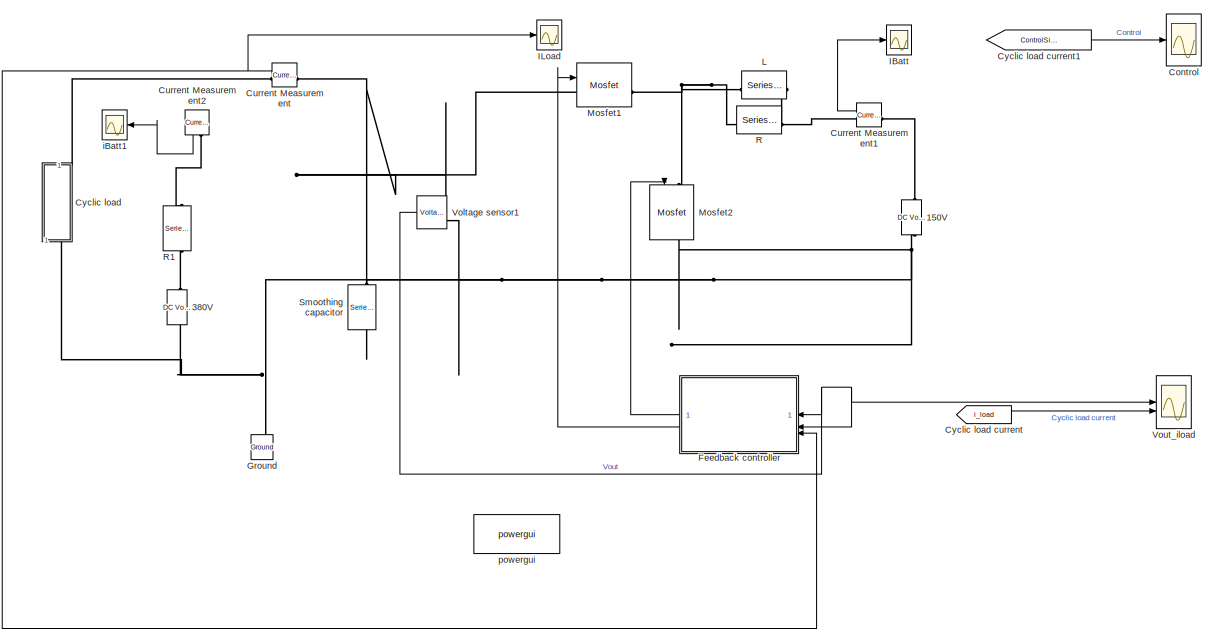
[diagram: root canvas - part 1/2, left side, full height]
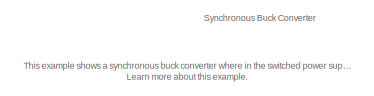
[diagram: root canvas - part 2/2, top right region]
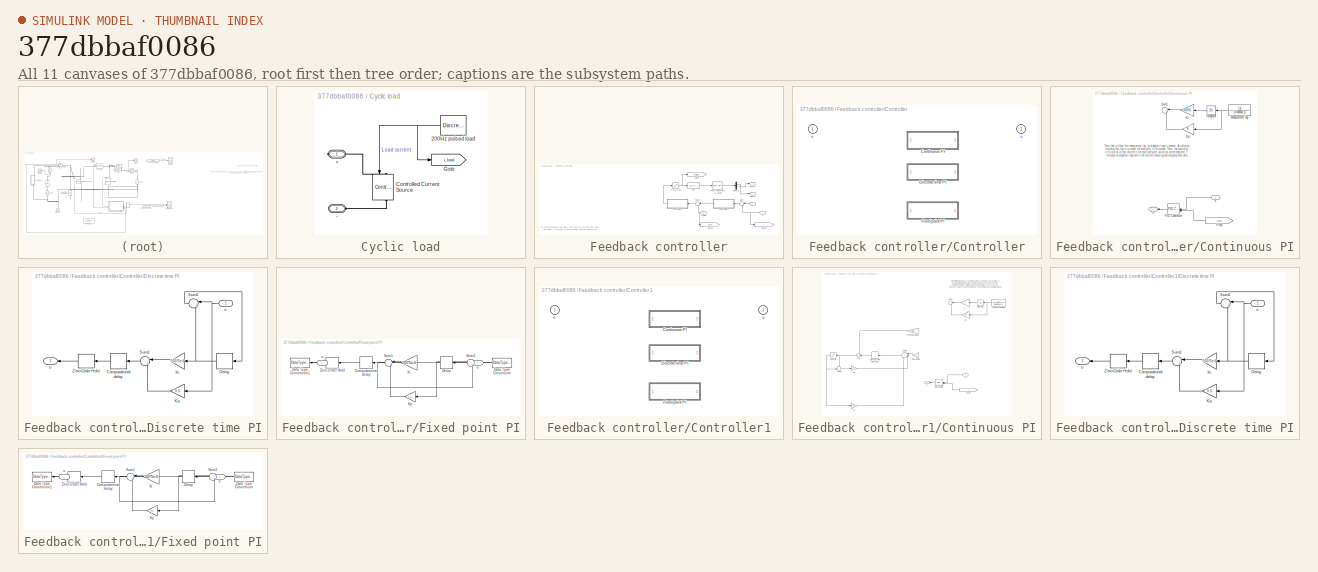
[diagram: thumbnail index - all 11 canvases of the model, root first then tree order]
MODEL slx_377dbbaf0086
KIND model
CONFIG AbsTol = auto
CONFIG EnableMultiTasking = on
CONFIG FixedStep = auto
CONFIG MaxStep = 1e-4
CONFIG MinStep = auto
CONFIG RelTol = 1e-4
CONFIG SampleTimeConstraint = Unconstrained
CONFIG SolverName = VariableStepAuto
CONFIG StartTime = 0.0
CONFIG StopTime = 10
BLOCK [Reference] 150V  REF=spsDCVoltageSourceLib/DC Voltage Source
  NameLocation = right
  SourceBlock = spsDCVoltageSourceLib/DC Voltage Source
  SourceType = DC Voltage Source
BLOCK [Reference] 380V  REF=spsDCVoltageSourceLib/DC Voltage Source
  NameLocation = right
  SourceBlock = spsDCVoltageSourceLib/DC Voltage Source
  SourceType = DC Voltage Source
BLOCK [Scope] Control
  ActiveDisplayYMaximum = 0.023182348178801094
  ActiveDisplayYMinimum = -0.0024647053532001208
  DataLoggingDecimateData = on
  DataLoggingDecimation = 1
  DataLoggingSaveFormat = Array
  DataLoggingVariableName = Control
  Floating = off
  GraphicalSettings = {"Style":{"BackgroundColor":[0.12941176470588237,0.12941176470588237,0.12941176470588237],"AxesColor":[0.07058823529411765,0.07058823529411765,0.07058823529411765],"LabelsColor":[0.8509803921568627,0.8509803921568627,0.8509803921568627],"PreserveColors":false,"Visible":[true],"LineStyle":["-"],"LineWidth":[1.5],"BarWidth":[0.9],"LineColor":["auto"],"LineFaceAlpha":[1],"LineEdgeAlpha":[1],"Marker":...<+2013ch>
  MultipleDisplayCache = [{"MaxYLimMag":0.023182348178801094,"MaxYLimReal":0.023182348178801094,"MinYLimMag":0,"MinYLimReal":-0.0024647053532001208,"PlotAsMagnitudePhase":false,"ShowGrid":true,"ShowLegend":false,"Title":"%<SignalLabel>","YLabel":""}]
  NumInputPorts = 1
  ScopeFrameLocation = window
  TimeSpan = 0.01
  Visible = on
  WasSavedAsWebScope = on
  WindowPosition = [690.000000,269.000000,489.000000,261.000000,]
BLOCK [Reference] Current Measurement  REF=spsCurrentMeasurementLib/Current Measurement
  SourceBlock = spsCurrentMeasurementLib/Current Measurement
  SourceType = Current Measurement
BLOCK [Reference] Current Measurement1  REF=spsCurrentMeasurementLib/Current Measurement
  SourceBlock = spsCurrentMeasurementLib/Current Measurement
  SourceType = Current Measurement
BLOCK [Reference] Current Measurement2  REF=spsCurrentMeasurementLib/Current Measurement
  NameLocation = right
  SourceBlock = spsCurrentMeasurementLib/Current Measurement
  SourceType = Current Measurement
BLOCK [SubSystem] Cyclic load
  NameLocation = right
BLOCK [From] Cyclic load current
  GotoTag = i_load
  TagVisibility = global
BLOCK [From] Cyclic load current1
  GotoTag = ControlSignal
  TagVisibility = global
BLOCK [PMIOPort] Cyclic load/+
  Side = Right
BLOCK [PMIOPort] Cyclic load/-
  Port = 2
  Side = Left
BLOCK [DiscretePulseGenerator] Cyclic load/200Hz pulsed load
  Amplitude = 100
  Period = 4
  PhaseDelay = 1/400
  PulseType = Time based
  PulseWidth = 50
BLOCK [Reference] Cyclic load/Controlled Current Source  REF=spsControlledCurrentSourceLib/Controlled Current Source
  NameLocation = right
  SourceBlock = spsControlledCurrentSourceLib/Controlled Current Source
  SourceType = Controlled Current Source
BLOCK [Goto] Cyclic load/Goto
  GotoTag = i_load
  TagVisibility = global
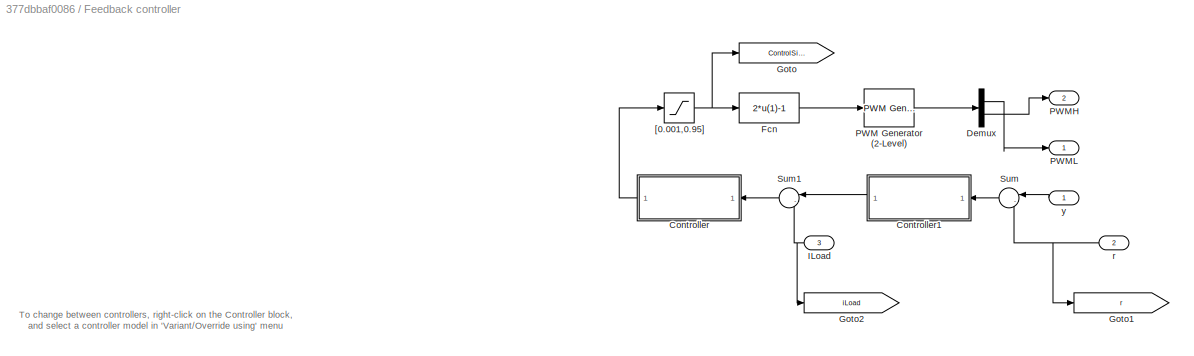
BLOCK [SubSystem] Feedback controller
BLOCK [SubSystem] Feedback controller/Controller
  AttributesFormatString = %<BlockChoice>
  LabelModeActiveChoice = Variant1
  Variant = on
  VariantControlMode = label
BLOCK [SubSystem] Feedback controller/Controller/Continuous PI
  VariantControl = Variant1
BLOCK [From] Feedback controller/Controller/Continuous PI/From
  GotoTag = iLoad
  TagVisibility = global
BLOCK [Integrator] Feedback controller/Controller/Continuous PI/Integrator
BLOCK [Gain] Feedback controller/Controller/Continuous PI/Ki
  Gain = 3000
BLOCK [Gain] Feedback controller/Controller/Continuous PI/Kp
BLOCK [TransferFcn] Feedback controller/Controller/Continuous PI/Measurement lag
  Denominator = [0.000001 1]
BLOCK [Reference] Feedback controller/Controller/Continuous PI/PID Controller  REF=slpidlib/PID Controller
  LibrarySourceBlock = simulink/Continuous/PID Controller
  SourceBlock = slpidlib/PID Controller
  SourceType = PID 1dof
BLOCK [Sum] Feedback controller/Controller/Continuous PI/Sum1
  InputSameDT = on
  Inputs = |++
  OutDataTypeStr = Inherit: Same as first input
  SaturateOnIntegerOverflow = on
BLOCK [Inport] Feedback controller/Controller/Continuous PI/e
BLOCK [Outport] Feedback controller/Controller/Continuous PI/u
  VectorParamsAs1DForOutWhenUnconnected = off
BLOCK [SubSystem] Feedback controller/Controller/Discrete time PI
  VariantControl = Variant2
BLOCK [Delay] Feedback controller/Controller/Discrete time PI/Computational delay
  DelayLength = 1
  InputPortMap = u0
  SampleTime = 5e-6
BLOCK [Delay] Feedback controller/Controller/Discrete time PI/Delay
  DelayLength = 1
  InputPortMap = u0
  SampleTime = 5e-6
BLOCK [Gain] Feedback controller/Controller/Discrete time PI/Ki
  Gain = 200*5e-6
BLOCK [Gain] Feedback controller/Controller/Discrete time PI/Kp
  Gain = 0.5
BLOCK [Sum] Feedback controller/Controller/Discrete time PI/Sum1
  InputSameDT = on
  Inputs = |++
  OutDataTypeStr = Inherit: Same as first input
  SaturateOnIntegerOverflow = on
BLOCK [Sum] Feedback controller/Controller/Discrete time PI/Sum2
  InputSameDT = on
  Inputs = |++
  OutDataTypeStr = Inherit: Same as first input
  SaturateOnIntegerOverflow = on
BLOCK [ZeroOrderHold] Feedback controller/Controller/Discrete time PI/Zero-Order Hold
  SampleTime = 5e-6
BLOCK [Inport] Feedback controller/Controller/Discrete time PI/e
BLOCK [Outport] Feedback controller/Controller/Discrete time PI/u
  VectorParamsAs1DForOutWhenUnconnected = off
BLOCK [SubSystem] Feedback controller/Controller/Fixed point PI
  MinMaxOverflowLogging = MinMaxAndOverflow
  VariantControl = Variant3
BLOCK [Delay] Feedback controller/Controller/Fixed point PI/Computational delay
  DelayLength = 1
  InputPortMap = u0
  SampleTime = 5e-6
BLOCK [DataTypeConversion] Feedback controller/Controller/Fixed point PI/Data Type Conversion
  OutDataTypeStr = fixdt(1,16,11)
  RndMeth = Nearest
  SaturateOnIntegerOverflow = off
BLOCK [DataTypeConversion] Feedback controller/Controller/Fixed point PI/Data Type Conversion1
  OutDataTypeStr = double
  RndMeth = Nearest
  SaturateOnIntegerOverflow = off
BLOCK [Delay] Feedback controller/Controller/Fixed point PI/Delay
  DelayLength = 1
  InputPortMap = u0
  SampleTime = 5e-6
BLOCK [Gain] Feedback controller/Controller/Fixed point PI/Ki
  Gain = 200*5e-6
  OutDataTypeStr = fixdt(1,16,13)
  RndMeth = Nearest
BLOCK [Gain] Feedback controller/Controller/Fixed point PI/Kp
  Gain = 0.5
  OutDataTypeStr = fixdt(1,16,9)
  RndMeth = Nearest
BLOCK [Sum] Feedback controller/Controller/Fixed point PI/Sum1
  Inputs = |++
  SaturateOnIntegerOverflow = on
BLOCK [Sum] Feedback controller/Controller/Fixed point PI/Sum2
  InputSameDT = on
  Inputs = |++
  OutDataTypeStr = Inherit: Same as first input
  SaturateOnIntegerOverflow = on
BLOCK [ZeroOrderHold] Feedback controller/Controller/Fixed point PI/Zero-Order Hold
  SampleTime = 5e-6
BLOCK [Inport] Feedback controller/Controller/Fixed point PI/e
BLOCK [Outport] Feedback controller/Controller/Fixed point PI/u
  VectorParamsAs1DForOutWhenUnconnected = off
BLOCK [Inport] Feedback controller/Controller/e
BLOCK [Outport] Feedback controller/Controller/u
  VectorParamsAs1DForOutWhenUnconnected = off
BLOCK [SubSystem] Feedback controller/Controller1
  AttributesFormatString = %<BlockChoice>
  LabelModeActiveChoice = Variant1
  Variant = on
  VariantControlMode = label
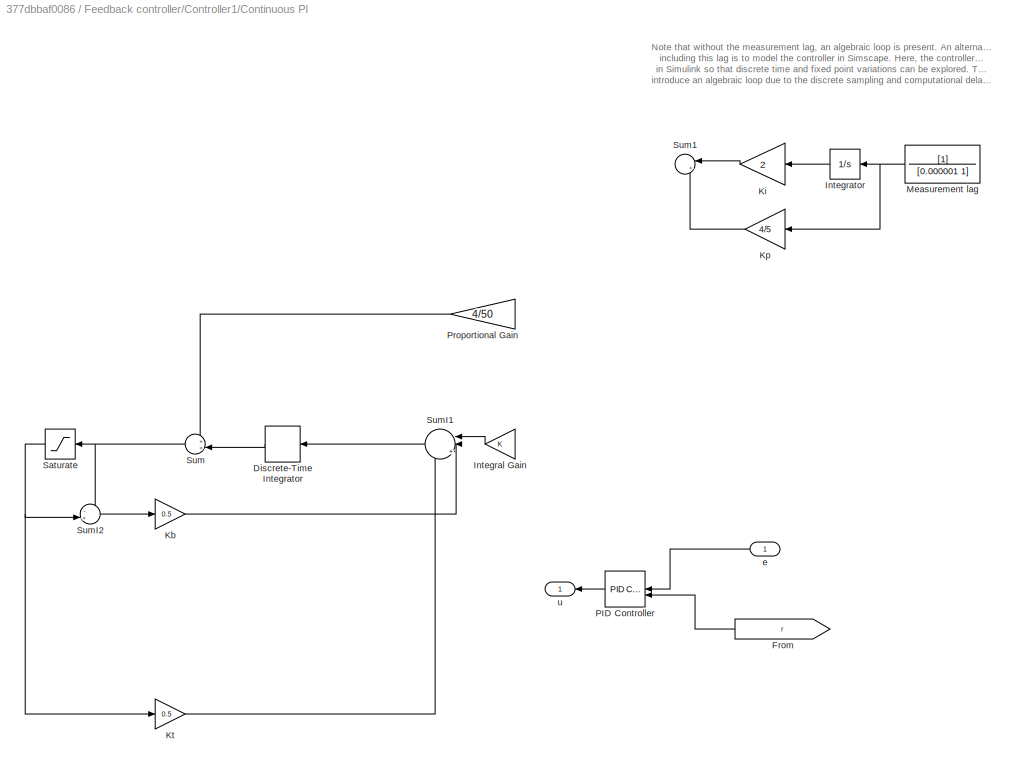
BLOCK [SubSystem] Feedback controller/Controller1/Continuous PI
  VariantControl = Variant1
BLOCK [DiscreteIntegrator] Feedback controller/Controller1/Continuous PI/Discrete-Time Integrator
  ICPrevOutput = DiscIntNeverNeededParam
  ICPrevScaledInput = DiscIntNeverNeededParam
  InitialConditionSetting = Auto
  SampleTime = 0.01
BLOCK [From] Feedback controller/Controller1/Continuous PI/From
  GotoTag = r
  TagVisibility = global
BLOCK [Gain] Feedback controller/Controller1/Continuous PI/Integral Gain
  DisableCoverage = on
  ParamMax = 10000
  ParamMin = 0
BLOCK [Integrator] Feedback controller/Controller1/Continuous PI/Integrator
BLOCK [Gain] Feedback controller/Controller1/Continuous PI/Kb
  Gain = 0.5
  OutMax = 1
  OutMin = 0
BLOCK [Gain] Feedback controller/Controller1/Continuous PI/Ki
  Gain = 2
BLOCK [Gain] Feedback controller/Controller1/Continuous PI/Kp
  Gain = 4/5
BLOCK [Gain] Feedback controller/Controller1/Continuous PI/Kt
  DisableCoverage = on
  Gain = 0.5
BLOCK [TransferFcn] Feedback controller/Controller1/Continuous PI/Measurement lag
  Denominator = [0.000001 1]
BLOCK [Reference] Feedback controller/Controller1/Continuous PI/PID Controller  REF=slpidlib/PID Controller
  LibrarySourceBlock = simulink/Continuous/PID Controller
  SourceBlock = slpidlib/PID Controller
  SourceType = PID 1dof
BLOCK [Gain] Feedback controller/Controller1/Continuous PI/Proportional Gain
  Gain = 4/50
BLOCK [Saturate] Feedback controller/Controller1/Continuous PI/Saturate
  LowerLimit = -400
  OutMax = 400
  OutMin = -400
  UpperLimit = 400
BLOCK [Sum] Feedback controller/Controller1/Continuous PI/Sum
  Inputs = ++|
BLOCK [Sum] Feedback controller/Controller1/Continuous PI/Sum1
  InputSameDT = on
  Inputs = |++
  OutDataTypeStr = Inherit: Same as first input
  SaturateOnIntegerOverflow = on
BLOCK [Sum] Feedback controller/Controller1/Continuous PI/SumI1
  Inputs = ||+++
BLOCK [Sum] Feedback controller/Controller1/Continuous PI/SumI2
  DisableCoverage = on
  Inputs = -+|
BLOCK [Inport] Feedback controller/Controller1/Continuous PI/e
BLOCK [Outport] Feedback controller/Controller1/Continuous PI/u
  VectorParamsAs1DForOutWhenUnconnected = off
BLOCK [SubSystem] Feedback controller/Controller1/Discrete time PI
  VariantControl = Variant2
BLOCK [Delay] Feedback controller/Controller1/Discrete time PI/Computational delay
  DelayLength = 1
  InputPortMap = u0
  SampleTime = 5e-6
BLOCK [Delay] Feedback controller/Controller1/Discrete time PI/Delay
  DelayLength = 1
  InputPortMap = u0
  SampleTime = 5e-6
BLOCK [Gain] Feedback controller/Controller1/Discrete time PI/Ki
  Gain = 200*5e-6
BLOCK [Gain] Feedback controller/Controller1/Discrete time PI/Kp
  Gain = 0.5
BLOCK [Sum] Feedback controller/Controller1/Discrete time PI/Sum1
  InputSameDT = on
  Inputs = |++
  OutDataTypeStr = Inherit: Same as first input
  SaturateOnIntegerOverflow = on
BLOCK [Sum] Feedback controller/Controller1/Discrete time PI/Sum2
  InputSameDT = on
  Inputs = |++
  OutDataTypeStr = Inherit: Same as first input
  SaturateOnIntegerOverflow = on
BLOCK [ZeroOrderHold] Feedback controller/Controller1/Discrete time PI/Zero-Order Hold
  SampleTime = 5e-6
BLOCK [Inport] Feedback controller/Controller1/Discrete time PI/e
BLOCK [Outport] Feedback controller/Controller1/Discrete time PI/u
  VectorParamsAs1DForOutWhenUnconnected = off
BLOCK [SubSystem] Feedback controller/Controller1/Fixed point PI
  MinMaxOverflowLogging = MinMaxAndOverflow
  VariantControl = Variant3
BLOCK [Delay] Feedback controller/Controller1/Fixed point PI/Computational delay
  DelayLength = 1
  InputPortMap = u0
  SampleTime = 5e-6
BLOCK [DataTypeConversion] Feedback controller/Controller1/Fixed point PI/Data Type Conversion
  OutDataTypeStr = fixdt(1,16,11)
  RndMeth = Nearest
  SaturateOnIntegerOverflow = off
BLOCK [DataTypeConversion] Feedback controller/Controller1/Fixed point PI/Data Type Conversion1
  OutDataTypeStr = double
  RndMeth = Nearest
  SaturateOnIntegerOverflow = off
BLOCK [Delay] Feedback controller/Controller1/Fixed point PI/Delay
  DelayLength = 1
  InputPortMap = u0
  SampleTime = 5e-6
BLOCK [Gain] Feedback controller/Controller1/Fixed point PI/Ki
  Gain = 200*5e-6
  OutDataTypeStr = fixdt(1,16,13)
  RndMeth = Nearest
BLOCK [Gain] Feedback controller/Controller1/Fixed point PI/Kp
  Gain = 0.5
  OutDataTypeStr = fixdt(1,16,9)
  RndMeth = Nearest
BLOCK [Sum] Feedback controller/Controller1/Fixed point PI/Sum1
  Inputs = |++
  SaturateOnIntegerOverflow = on
BLOCK [Sum] Feedback controller/Controller1/Fixed point PI/Sum2
  InputSameDT = on
  Inputs = |++
  OutDataTypeStr = Inherit: Same as first input
  SaturateOnIntegerOverflow = on
BLOCK [ZeroOrderHold] Feedback controller/Controller1/Fixed point PI/Zero-Order Hold
  SampleTime = 5e-6
BLOCK [Inport] Feedback controller/Controller1/Fixed point PI/e
BLOCK [Outport] Feedback controller/Controller1/Fixed point PI/u
  VectorParamsAs1DForOutWhenUnconnected = off
BLOCK [Inport] Feedback controller/Controller1/e
BLOCK [Outport] Feedback controller/Controller1/u
  VectorParamsAs1DForOutWhenUnconnected = off
BLOCK [Demux] Feedback controller/Demux
  Outputs = 2
BLOCK [Fcn] Feedback controller/Fcn
  Expr = 2*u(1)-1
BLOCK [Goto] Feedback controller/Goto
  GotoTag = ControlSignal
  TagVisibility = global
BLOCK [Goto] Feedback controller/Goto1
  GotoTag = r
  TagVisibility = global
BLOCK [Goto] Feedback controller/Goto2
  GotoTag = iLoad
  TagVisibility = global
BLOCK [Inport] Feedback controller/ILoad
  Port = 3
BLOCK [Reference] Feedback controller/PWM Generator (2-Level)  REF=spsPWMGenerator2LevelLib/PWM Generator
(2-Level)
  SourceBlock = spsPWMGenerator2LevelLib/PWM Generator\n(2-Level)
  SourceType = PWM Generator (2-Level)
BLOCK [Outport] Feedback controller/PWMH
  Port = 2
  VectorParamsAs1DForOutWhenUnconnected = off
BLOCK [Outport] Feedback controller/PWML
  VectorParamsAs1DForOutWhenUnconnected = off
BLOCK [Sum] Feedback controller/Sum
  InputSameDT = on
  Inputs = |-+
  OutDataTypeStr = Inherit: Same as first input
  SaturateOnIntegerOverflow = on
BLOCK [Sum] Feedback controller/Sum1
  InputSameDT = on
  Inputs = |-+
  OutDataTypeStr = Inherit: Same as first input
  SaturateOnIntegerOverflow = on
BLOCK [Saturate] Feedback controller/[0.001,0.95]
  LowerLimit = 0.0001
  UpperLimit = 0.95
BLOCK [Inport] Feedback controller/r
  Port = 2
BLOCK [Inport] Feedback controller/y
BLOCK [Reference] Ground  REF=spsGroundLib/Ground
  NameLocation = left
  SourceBlock = spsGroundLib/Ground
  SourceType = Ground
BLOCK [Scope] IBatt
  ActiveDisplayYMaximum = 2038.7952824173037
  ActiveDisplayYMinimum = -2756.6024163446573
  DataLogging = on
  DataLoggingDecimateData = on
  DataLoggingDecimation = 1
  DataLoggingSaveFormat = Array
  DataLoggingVariableName = Isrc_sps1
  Floating = off
  GraphicalSettings = {"Style":{"BackgroundColor":[0.12941176470588237,0.12941176470588237,0.12941176470588237],"AxesColor":[0.07058823529411765,0.07058823529411765,0.07058823529411765],"LabelsColor":[0.8509803921568627,0.8509803921568627,0.8509803921568627],"PreserveColors":false,"Visible":[true],"LineStyle":["-"],"LineWidth":[1.5],"BarWidth":[0.9],"LineColor":["auto"],"LineFaceAlpha":[1],"LineEdgeAlpha":[1],"Marker":...<+2027ch>
  MultipleDisplayCache = [{"MaxYLimMag":2756.6024163446573,"MaxYLimReal":2038.7952824173037,"MinYLimMag":0,"MinYLimReal":-2756.6024163446573,"PlotAsMagnitudePhase":false,"ShowGrid":true,"ShowLegend":false,"Title":"%<SignalLabel>","YLabel":""}]
  NumInputPorts = 1
  ScopeFrameLocation = window
  TimeSpan = 0.01
  WasSavedAsWebScope = on
  WindowPosition = [712.000000,515.000000,488.000000,351.000000,]
BLOCK [Scope] ILoad
  ActiveDisplayYMaximum = 409.62099997708248
  ActiveDisplayYMinimum = -2686.511166337008
  DataLogging = on
  DataLoggingDecimateData = on
  DataLoggingDecimation = 1
  DataLoggingSaveFormat = Array
  DataLoggingVariableName = Isrc_sps
  Floating = off
  GraphicalSettings = {"Style":{"BackgroundColor":[0.12941176470588237,0.12941176470588237,0.12941176470588237],"AxesColor":[0.07058823529411765,0.07058823529411765,0.07058823529411765],"LabelsColor":[0.8509803921568627,0.8509803921568627,0.8509803921568627],"PreserveColors":false,"Visible":[true],"LineStyle":["-"],"LineWidth":[1.5],"BarWidth":[0.9],"LineColor":["auto"],"LineFaceAlpha":[1],"LineEdgeAlpha":[1],"Marker":...<+2019ch>
  MultipleDisplayCache = [{"MaxYLimMag":2686.511166337008,"MaxYLimReal":409.62099997708248,"MinYLimMag":0,"MinYLimReal":-2686.511166337008,"PlotAsMagnitudePhase":false,"ShowGrid":true,"ShowLegend":false,"Title":"%<SignalLabel>","YLabel":""}]
  NumInputPorts = 1
  ScopeFrameLocation = window
  TimeSpan = 0.01
  WasSavedAsWebScope = on
  WindowPosition = [712.000000,515.000000,488.000000,351.000000,]
BLOCK [Reference] L  REF=spsSeriesRLCBranchLib/Series RLC Branch
  NameLocation = top
  SourceBlock = spsSeriesRLCBranchLib/Series RLC Branch
  SourceType = Series RLC Branch
BLOCK [Reference] Mosfet1  REF=spsMosfetLib/Mosfet
  SourceBlock = spsMosfetLib/Mosfet
  SourceType = Mosfet
BLOCK [Reference] Mosfet2  REF=spsMosfetLib/Mosfet
  NameLocation = left
  SourceBlock = spsMosfetLib/Mosfet
  SourceType = Mosfet
BLOCK [Reference] R  REF=spsSeriesRLCBranchLib/Series RLC Branch
  SourceBlock = spsSeriesRLCBranchLib/Series RLC Branch
  SourceType = Series RLC Branch
BLOCK [Reference] R1  REF=spsSeriesRLCBranchLib/Series RLC Branch
  NameLocation = left
  SourceBlock = spsSeriesRLCBranchLib/Series RLC Branch
  SourceType = Series RLC Branch
BLOCK [Reference] Smoothing capacitor  REF=spsSeriesRLCBranchLib/Series RLC Branch
  NameLocation = left
  SourceBlock = spsSeriesRLCBranchLib/Series RLC Branch
  SourceType = Series RLC Branch
BLOCK [Reference] Voltage sensor1  REF=spsVoltageMeasurementLib/Voltage Measurement
  SourceBlock = spsVoltageMeasurementLib/Voltage Measurement
  SourceType = Voltage Measurement
BLOCK [Scope] Vout_iload
  ActiveDisplayYMaximum = 696.73344217165311
  ActiveDisplayYMinimum = -82.1350359513392
  DataLoggingDecimateData = on
  DataLoggingDecimation = 1
  DataLoggingSaveFormat = Array
  DataLoggingVariableName = Vout_sps
  Floating = off
  GraphicalSettings = {"Style":{"BackgroundColor":[0.12941176470588237,0.12941176470588237,0.12941176470588237],"AxesColor":[0.07058823529411765,0.07058823529411765,0.07058823529411765],"LabelsColor":[0.8509803921568627,0.8509803921568627,0.8509803921568627],"PreserveColors":false,"Visible":[true,true],"LineStyle":["-","-"],"LineWidth":[1.5,1.5],"BarWidth":[0.9,0.9],"LineColor":["auto","auto"],"LineFaceAlpha":[1,1],"Li...<+2398ch>
  LayoutDimensionsString = [2 1]
  MultipleDisplayCache = [{"MaxYLimMag":696.73344217165311,"MaxYLimReal":696.73344217165311,"MinYLimMag":0,"MinYLimReal":-82.1350359513392,"PlotAsMagnitudePhase":false,"ShowGrid":true,"ShowLegend":false,"Title":"%<SignalLabel>","YLabel":""},{"MaxYLimMag":112.5,"MaxYLimReal":112.5,"MinYLimMag":0,"MinYLimReal":-12.499999999999996,"PlotAsMagnitudePhase":false,"ShowGrid":true,"ShowLegend":false,"Title":"%<SignalLabel>","YLabe...<+7ch>
  NumInputPorts = 2
  ScopeFrameLocation = window
  TimeSpan = 0.01
  Visible = on
  WasSavedAsWebScope = on
  WindowPosition = [1386.000000,71.000000,487.000000,623.000000,]
BLOCK [Scope] iBatt1
  ActiveDisplayYMaximum = 112.5
  ActiveDisplayYMinimum = -12.499999999999996
  DataLogging = on
  DataLoggingDecimateData = on
  DataLoggingDecimation = 1
  DataLoggingSaveFormat = Array
  DataLoggingVariableName = Isrc_sps3
  Floating = off
  GraphicalSettings = {"Style":{"BackgroundColor":[0.12941176470588237,0.12941176470588237,0.12941176470588237],"AxesColor":[0.07058823529411765,0.07058823529411765,0.07058823529411765],"LabelsColor":[0.8509803921568627,0.8509803921568627,0.8509803921568627],"PreserveColors":false,"Visible":[true],"LineStyle":["-"],"LineWidth":[1.5],"BarWidth":[0.9],"LineColor":["auto"],"LineFaceAlpha":[1],"LineEdgeAlpha":[1],"Marker":...<+1973ch>
  MultipleDisplayCache = [{"MaxYLimMag":112.5,"MaxYLimReal":112.5,"MinYLimMag":0,"MinYLimReal":-12.499999999999996,"PlotAsMagnitudePhase":false,"ShowGrid":true,"ShowLegend":false,"Title":"%<SignalLabel>","YLabel":""}]
  NumInputPorts = 1
  ScopeFrameLocation = window
  TimeSpan = 0.01
  WasSavedAsWebScope = on
  WindowPosition = [712.000000,515.000000,488.000000,351.000000,]
BLOCK [Reference] powergui  REF=spspowerguiLib/powergui
  Priority = 1
  SourceBlock = spspowerguiLib/powergui
  SourceType = PSB option menu block
ANNOTATION (root): This example shows a synchronous buck converter where in the switched power supply converts a 30V DC supply into a regulated 15V DC supply. Learn more about this example.
ANNOTATION (root): Synchronous Buck Converter
ANNOTATION Feedback controller: To change between controllers, right-click on the Controller block, and select a controller model in 'Variant/Override using' menu
ANNOTATION Feedback controller/Controller/Continuous PI: Note that without the measurement lag, an algebraic loop is present. An alternative to including this lag is to model the controller in Simscape. Here, the controller is implemented in Simulink so that discrete time and fixed point variations can be explored. These do not introduce an algebraic loop due to the discrete sampling and computational delay.
ANNOTATION Feedback controller/Controller1/Continuous PI: Note that without the measurement lag, an algebraic loop is present. An alternative to including this lag is to model the controller in Simscape. Here, the controller is implemented in Simulink so that discrete time and fixed point variations can be explored. These do not introduce an algebraic loop due to the discrete sampling and computational delay.
LINE Current Measurement1:1 -> IBatt:1
LINE Current Measurement2:1 -> iBatt1:1
NET Current Measurement:1 -> Feedback controller:3, ILoad:1
LINE Cyclic load current1:1 -> Control:1
LINE Cyclic load current:1 -> Vout_iload:2
NET Cyclic load/200Hz pulsed load:1 -> Cyclic load/Controlled Current Source:1, Cyclic load/Goto:1
LINE Feedback controller/Controller/Continuous PI/From:1 -> Feedback controller/Controller/Continuous PI/PID Controller:2
LINE Feedback controller/Controller/Continuous PI/Integrator:1 -> Feedback controller/Controller/Continuous PI/Ki:1
LINE Feedback controller/Controller/Continuous PI/Ki:1 -> Feedback controller/Controller/Continuous PI/Sum1:1
LINE Feedback controller/Controller/Continuous PI/Kp:1 -> Feedback controller/Controller/Continuous PI/Sum1:2
NET Feedback controller/Controller/Continuous PI/Measurement lag:1 -> Feedback controller/Controller/Continuous PI/Integrator:1, Feedback controller/Controller/Continuous PI/Kp:1
LINE Feedback controller/Controller/Continuous PI/PID Controller:1 -> Feedback controller/Controller/Continuous PI/u:1
LINE Feedback controller/Controller/Continuous PI/e:1 -> Feedback controller/Controller/Continuous PI/PID Controller:1
LINE Feedback controller/Controller/Discrete time PI/Computational delay:1 -> Feedback controller/Controller/Discrete time PI/Zero-Order Hold:1
NET Feedback controller/Controller/Discrete time PI/Delay:1 -> Feedback controller/Controller/Discrete time PI/Ki:1, Feedback controller/Controller/Discrete time PI/Sum2:2
LINE Feedback controller/Controller/Discrete time PI/Ki:1 -> Feedback controller/Controller/Discrete time PI/Sum1:1
LINE Feedback controller/Controller/Discrete time PI/Kp:1 -> Feedback controller/Controller/Discrete time PI/Sum1:2
LINE Feedback controller/Controller/Discrete time PI/Sum1:1 -> Feedback controller/Controller/Discrete time PI/Computational delay:1
LINE Feedback controller/Controller/Discrete time PI/Sum2:1 -> Feedback controller/Controller/Discrete time PI/Delay:1
LINE Feedback controller/Controller/Discrete time PI/Zero-Order Hold:1 -> Feedback controller/Controller/Discrete time PI/u:1
NET Feedback controller/Controller/Discrete time PI/e:1 -> Feedback controller/Controller/Discrete time PI/Kp:1, Feedback controller/Controller/Discrete time PI/Sum2:1
LINE Feedback controller/Controller/Fixed point PI/Computational delay:1 -> Feedback controller/Controller/Fixed point PI/Zero-Order Hold:1
LINE Feedback controller/Controller/Fixed point PI/Data Type Conversion1:1 -> Feedback controller/Controller/Fixed point PI/u:1
NET Feedback controller/Controller/Fixed point PI/Data Type Conversion:1 -> Feedback controller/Controller/Fixed point PI/Kp:1, Feedback controller/Controller/Fixed point PI/Sum2:1
NET Feedback controller/Controller/Fixed point PI/Delay:1 -> Feedback controller/Controller/Fixed point PI/Ki:1, Feedback controller/Controller/Fixed point PI/Sum2:2
LINE Feedback controller/Controller/Fixed point PI/Ki:1 -> Feedback controller/Controller/Fixed point PI/Sum1:1
LINE Feedback controller/Controller/Fixed point PI/Kp:1 -> Feedback controller/Controller/Fixed point PI/Sum1:2
LINE Feedback controller/Controller/Fixed point PI/Sum1:1 -> Feedback controller/Controller/Fixed point PI/Computational delay:1
LINE Feedback controller/Controller/Fixed point PI/Sum2:1 -> Feedback controller/Controller/Fixed point PI/Delay:1
LINE Feedback controller/Controller/Fixed point PI/Zero-Order Hold:1 -> Feedback controller/Controller/Fixed point PI/Data Type Conversion1:1
LINE Feedback controller/Controller/Fixed point PI/e:1 -> Feedback controller/Controller/Fixed point PI/Data Type Conversion:1
LINE Feedback controller/Controller1/Continuous PI/Discrete-Time Integrator:1 -> Feedback controller/Controller1/Continuous PI/Sum:2
LINE Feedback controller/Controller1/Continuous PI/From:1 -> Feedback controller/Controller1/Continuous PI/PID Controller:2
LINE Feedback controller/Controller1/Continuous PI/Integral Gain:1 -> Feedback controller/Controller1/Continuous PI/SumI1:1
LINE Feedback controller/Controller1/Continuous PI/Integrator:1 -> Feedback controller/Controller1/Continuous PI/Ki:1
LINE Feedback controller/Controller1/Continuous PI/Kb:1 -> Feedback controller/Controller1/Continuous PI/SumI1:2
LINE Feedback controller/Controller1/Continuous PI/Ki:1 -> Feedback controller/Controller1/Continuous PI/Sum1:1
LINE Feedback controller/Controller1/Continuous PI/Kp:1 -> Feedback controller/Controller1/Continuous PI/Sum1:2
LINE Feedback controller/Controller1/Continuous PI/Kt:1 -> Feedback controller/Controller1/Continuous PI/SumI1:3
NET Feedback controller/Controller1/Continuous PI/Measurement lag:1 -> Feedback controller/Controller1/Continuous PI/Integrator:1, Feedback controller/Controller1/Continuous PI/Kp:1
LINE Feedback controller/Controller1/Continuous PI/PID Controller:1 -> Feedback controller/Controller1/Continuous PI/u:1
LINE Feedback controller/Controller1/Continuous PI/Proportional Gain:1 -> Feedback controller/Controller1/Continuous PI/Sum:1
NET Feedback controller/Controller1/Continuous PI/Saturate:1 -> Feedback controller/Controller1/Continuous PI/Kt:1, Feedback controller/Controller1/Continuous PI/SumI2:2
NET Feedback controller/Controller1/Continuous PI/Sum:1 -> Feedback controller/Controller1/Continuous PI/Saturate:1, Feedback controller/Controller1/Continuous PI/SumI2:1
LINE Feedback controller/Controller1/Continuous PI/SumI1:1 -> Feedback controller/Controller1/Continuous PI/Discrete-Time Integrator:1
LINE Feedback controller/Controller1/Continuous PI/SumI2:1 -> Feedback controller/Controller1/Continuous PI/Kb:1
LINE Feedback controller/Controller1/Continuous PI/e:1 -> Feedback controller/Controller1/Continuous PI/PID Controller:1
LINE Feedback controller/Controller1/Discrete time PI/Computational delay:1 -> Feedback controller/Controller1/Discrete time PI/Zero-Order Hold:1
NET Feedback controller/Controller1/Discrete time PI/Delay:1 -> Feedback controller/Controller1/Discrete time PI/Ki:1, Feedback controller/Controller1/Discrete time PI/Sum2:2
LINE Feedback controller/Controller1/Discrete time PI/Ki:1 -> Feedback controller/Controller1/Discrete time PI/Sum1:1
LINE Feedback controller/Controller1/Discrete time PI/Kp:1 -> Feedback controller/Controller1/Discrete time PI/Sum1:2
LINE Feedback controller/Controller1/Discrete time PI/Sum1:1 -> Feedback controller/Controller1/Discrete time PI/Computational delay:1
LINE Feedback controller/Controller1/Discrete time PI/Sum2:1 -> Feedback controller/Controller1/Discrete time PI/Delay:1
LINE Feedback controller/Controller1/Discrete time PI/Zero-Order Hold:1 -> Feedback controller/Controller1/Discrete time PI/u:1
NET Feedback controller/Controller1/Discrete time PI/e:1 -> Feedback controller/Controller1/Discrete time PI/Kp:1, Feedback controller/Controller1/Discrete time PI/Sum2:1
LINE Feedback controller/Controller1/Fixed point PI/Computational delay:1 -> Feedback controller/Controller1/Fixed point PI/Zero-Order Hold:1
LINE Feedback controller/Controller1/Fixed point PI/Data Type Conversion1:1 -> Feedback controller/Controller1/Fixed point PI/u:1
NET Feedback controller/Controller1/Fixed point PI/Data Type Conversion:1 -> Feedback controller/Controller1/Fixed point PI/Kp:1, Feedback controller/Controller1/Fixed point PI/Sum2:1
NET Feedback controller/Controller1/Fixed point PI/Delay:1 -> Feedback controller/Controller1/Fixed point PI/Ki:1, Feedback controller/Controller1/Fixed point PI/Sum2:2
LINE Feedback controller/Controller1/Fixed point PI/Ki:1 -> Feedback controller/Controller1/Fixed point PI/Sum1:1
LINE Feedback controller/Controller1/Fixed point PI/Kp:1 -> Feedback controller/Controller1/Fixed point PI/Sum1:2
LINE Feedback controller/Controller1/Fixed point PI/Sum1:1 -> Feedback controller/Controller1/Fixed point PI/Computational delay:1
LINE Feedback controller/Controller1/Fixed point PI/Sum2:1 -> Feedback controller/Controller1/Fixed point PI/Delay:1
LINE Feedback controller/Controller1/Fixed point PI/Zero-Order Hold:1 -> Feedback controller/Controller1/Fixed point PI/Data Type Conversion1:1
LINE Feedback controller/Controller1/Fixed point PI/e:1 -> Feedback controller/Controller1/Fixed point PI/Data Type Conversion:1
LINE Feedback controller/Controller1:1 -> Feedback controller/Sum1:1
LINE Feedback controller/Controller:1 -> Feedback controller/[0.001,0.95]:1
LINE Feedback controller/Demux:1 -> Feedback controller/PWML:1
LINE Feedback controller/Demux:2 -> Feedback controller/PWMH:1
LINE Feedback controller/Fcn:1 -> Feedback controller/PWM Generator (2-Level):1
NET Feedback controller/ILoad:1 -> Feedback controller/Goto2:1, Feedback controller/Sum1:2
LINE Feedback controller/PWM Generator (2-Level):1 -> Feedback controller/Demux:1
LINE Feedback controller/Sum1:1 -> Feedback controller/Controller:1
LINE Feedback controller/Sum:1 -> Feedback controller/Controller1:1
NET Feedback controller/[0.001,0.95]:1 -> Feedback controller/Fcn:1, Feedback controller/Goto:1
NET Feedback controller/r:1 -> Feedback controller/Goto1:1, Feedback controller/Sum:2
LINE Feedback controller/y:1 -> Feedback controller/Sum:1
LINE Feedback controller:1 -> Mosfet2:1
LINE Feedback controller:2 -> Mosfet1:1
NET Voltage sensor1:1 -> Feedback controller:1, Feedback controller:2, Vout_iload:1
PNET net1: 150V:LConn1 -- 380V:LConn1 -- Cyclic load:LConn1 -- Ground:LConn1 -- Mosfet2:RConn1 -- Smoothing capacitor:RConn1 -- Voltage sensor1:LConn2
PLINE 150V:RConn1 -- Current Measurement1:LConn1
PLINE 380V:RConn1 -- R1:RConn1
PNET net2: Current Measurement1:RConn1 -- L:RConn1 -- R:RConn1
PLINE Current Measurement2:RConn1 -- R1:LConn1
PNET net3: Current Measurement:LConn1 -- Mosfet1:LConn1 -- Smoothing capacitor:LConn1 -- Voltage sensor1:LConn1
PLINE Current Measurement:RConn1 -- Cyclic load:RConn1
PLINE Cyclic load/+:RConn1 -- Cyclic load/Controlled Current Source:LConn1
PLINE Cyclic load/-:RConn1 -- Cyclic load/Controlled Current Source:RConn1
PNET net4: L:LConn1 -- Mosfet1:RConn1 -- Mosfet2:LConn1 -- R:LConn1
note: NET lines group one-source signal fan-out (src -> all destinations, sorted); 1:1 wires keep LINE; PNET lines group multi-terminal physical nets as a canonical sorted terminal list (undirected conserving connections); 2-terminal nets keep the pairwise PLINE form
